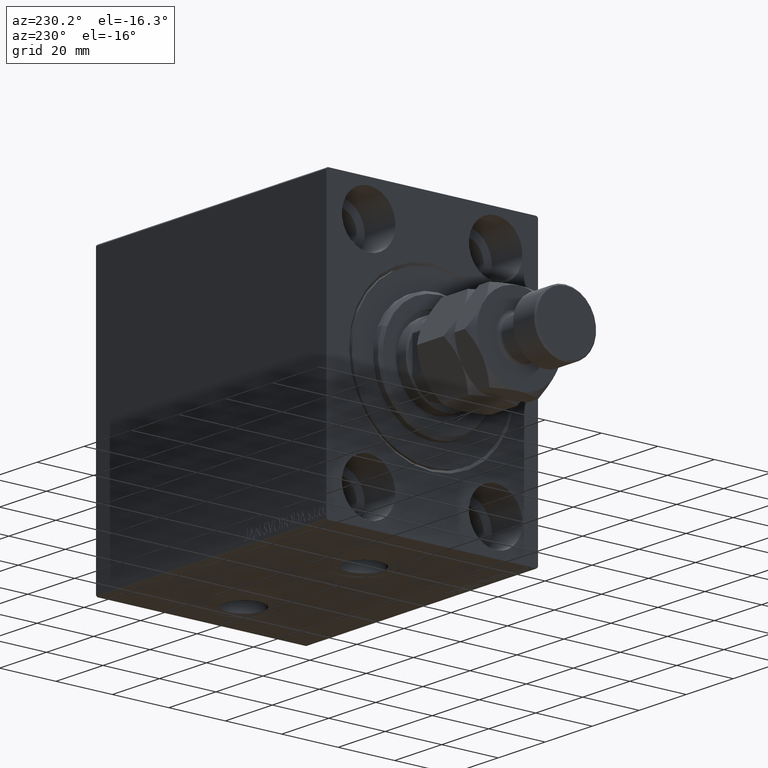
[diagram: clean part render]
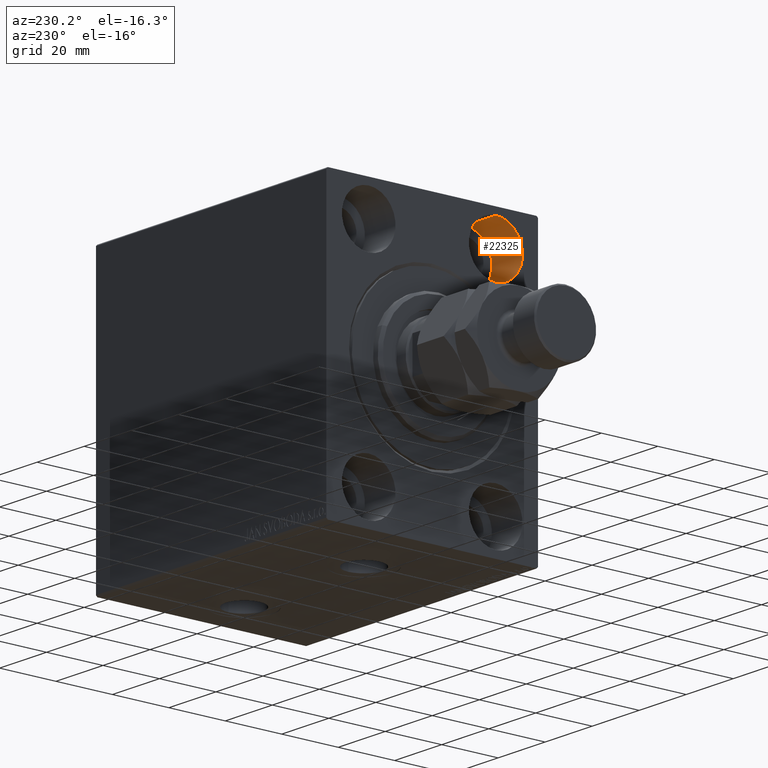
[diagram: same view with one face highlighted and labeled with its STEP entity id]
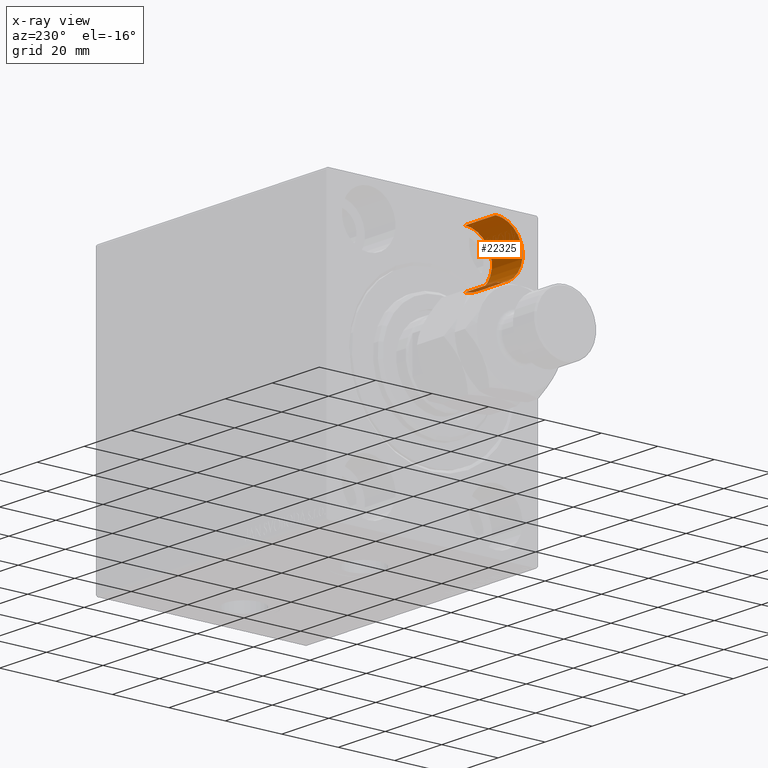
[diagram: x-ray of the same camera — body ghosted, the highlighted face saturated]
A machine part, auxiliary view. The second image highlights one B-rep face of the part: STEP entity #22325.
The next image is the same camera in x-ray: the body ghosted, the highlighted face saturated — about 5% of this face is hidden behind the body in this view.
In plain terms, the highlighted cylindrical surface (edge-blend (fillet) strip) has radius 9.5 mm, axis along (-1, -0, -0).
Its self-contained STEP definition (entity closure, byte-faithful):
#1184 = DIRECTION ( 'NONE',  ( 0.000000000000000000, 0.000000000000000000, 1.000000000000000000 ) ) ;
#4181 = CARTESIAN_POINT ( 'NONE',  ( 13.00000000000000000, -22.49999999999999645, 47.49999999999999289 ) ) ;
#4650 = CARTESIAN_POINT ( 'NONE',  ( 0.000000000000000000, -22.49999999999999645, 37.99999999999999289 ) ) ;
#5021 = VECTOR ( 'NONE', #9910, 1000.000000000000000 ) ;
#5802 = VERTEX_POINT ( 'NONE', #27240 ) ;
#6282 = ORIENTED_EDGE ( 'NONE', *, *, #12056, .T. ) ;
#7066 = FACE_OUTER_BOUND ( 'NONE', #20105, .T. ) ;
#7937 = AXIS2_PLACEMENT_3D ( 'NONE', #41747, #16503, #20445 ) ;
#9910 = DIRECTION ( 'NONE',  ( -1.000000000000000000, -0.000000000000000000, -0.000000000000000000 ) ) ;
#10675 = DIRECTION ( 'NONE',  ( -1.000000000000000000, -0.000000000000000000, -0.000000000000000000 ) ) ;
#12056 = EDGE_CURVE ( 'NONE', #5802, #23806, #12953, .T. ) ;
#12953 = CIRCLE ( 'NONE', #35873, 9.500000000000001776 ) ;
#13384 = LINE ( 'NONE', #41629, #5021 ) ;
#13542 = DIRECTION ( 'NONE',  ( 0.000000000000000000, 0.000000000000000000, 1.000000000000000000 ) ) ;
#13646 = VERTEX_POINT ( 'NONE', #25330 ) ;
#14512 = ORIENTED_EDGE ( 'NONE', *, *, #18802, .F. ) ;
#14683 = CARTESIAN_POINT ( 'NONE',  ( 0.000000000000000000, -22.49999999999999645, 47.49999999999999289 ) ) ;
#16196 = AXIS2_PLACEMENT_3D ( 'NONE', #23962, #35086, #13542 ) ;
#16503 = DIRECTION ( 'NONE',  ( -1.000000000000000000, 0.000000000000000000, 0.000000000000000000 ) ) ;
#18802 = EDGE_CURVE ( 'NONE', #34704, #23806, #35895, .T. ) ;
#20105 = EDGE_LOOP ( 'NONE', ( #30493, #38884, #6282, #14512 ) ) ;
#20445 = DIRECTION ( 'NONE',  ( 0.000000000000000000, 0.000000000000000000, 1.000000000000000000 ) ) ;
#21180 = CYLINDRICAL_SURFACE ( 'NONE', #16196, 9.500000000000001776 ) ;
#22325 = ADVANCED_FACE ( 'NONE', ( #7066 ), #21180, .F. ) ;
#23806 = VERTEX_POINT ( 'NONE', #14683 ) ;
#23962 = CARTESIAN_POINT ( 'NONE',  ( 13.00000000000000000, -22.49999999999999645, 37.99999999999999289 ) ) ;
#25330 = CARTESIAN_POINT ( 'NONE',  ( 13.00000000000000000, -22.49999999999999645, 28.49999999999998934 ) ) ;
#25671 = CIRCLE ( 'NONE', #7937, 9.500000000000001776 ) ;
#26927 = CARTESIAN_POINT ( 'NONE',  ( 13.00000000000000000, -22.49999999999999645, 47.49999999999999289 ) ) ;
#27240 = CARTESIAN_POINT ( 'NONE',  ( 0.000000000000000000, -22.49999999999999645, 28.49999999999998934 ) ) ;
#30493 = ORIENTED_EDGE ( 'NONE', *, *, #34641, .F. ) ;
#32901 = DIRECTION ( 'NONE',  ( -1.000000000000000000, 0.000000000000000000, 0.000000000000000000 ) ) ;
#34641 = EDGE_CURVE ( 'NONE', #13646, #34704, #25671, .T. ) ;
#34704 = VERTEX_POINT ( 'NONE', #26927 ) ;
#35086 = DIRECTION ( 'NONE',  ( -1.000000000000000000, -0.000000000000000000, -0.000000000000000000 ) ) ;
#35353 = VECTOR ( 'NONE', #10675, 1000.000000000000000 ) ;
#35873 = AXIS2_PLACEMENT_3D ( 'NONE', #4650, #32901, #1184 ) ;
#35895 = LINE ( 'NONE', #4181, #35353 ) ;
#38884 = ORIENTED_EDGE ( 'NONE', *, *, #40874, .T. ) ;
#40874 = EDGE_CURVE ( 'NONE', #13646, #5802, #13384, .T. ) ;
#41629 = CARTESIAN_POINT ( 'NONE',  ( 13.00000000000000000, -22.49999999999999645, 28.49999999999998934 ) ) ;
#41747 = CARTESIAN_POINT ( 'NONE',  ( 13.00000000000000000, -22.49999999999999645, 37.99999999999999289 ) ) ;